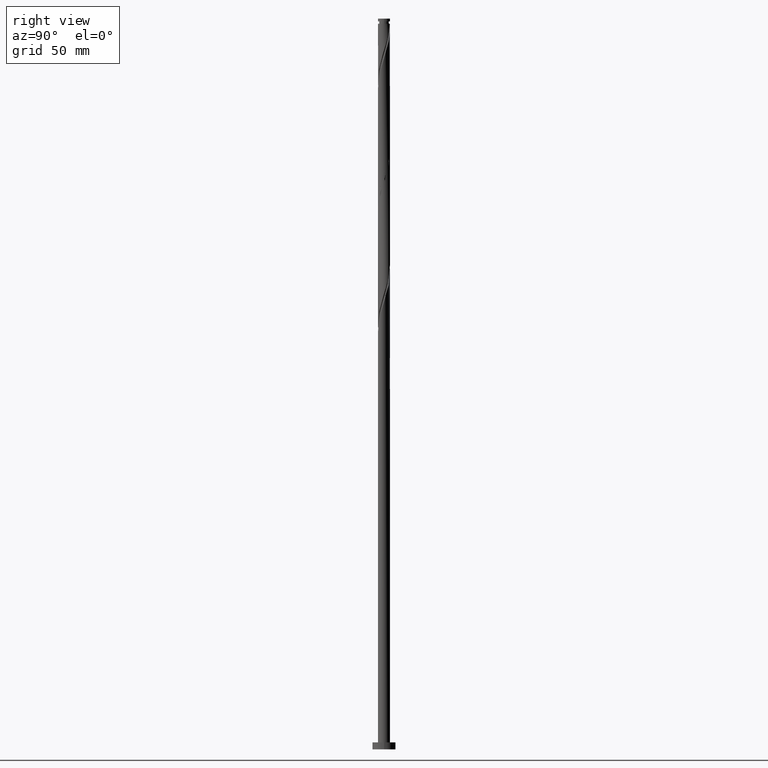
[diagram: clean part render]
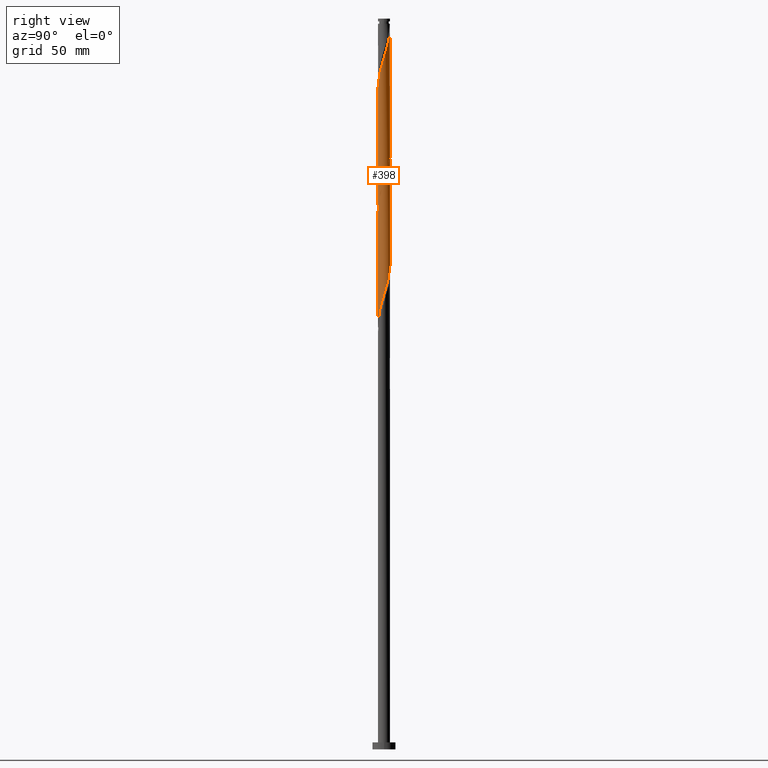
[diagram: same view with one face highlighted and labeled with its STEP entity id]
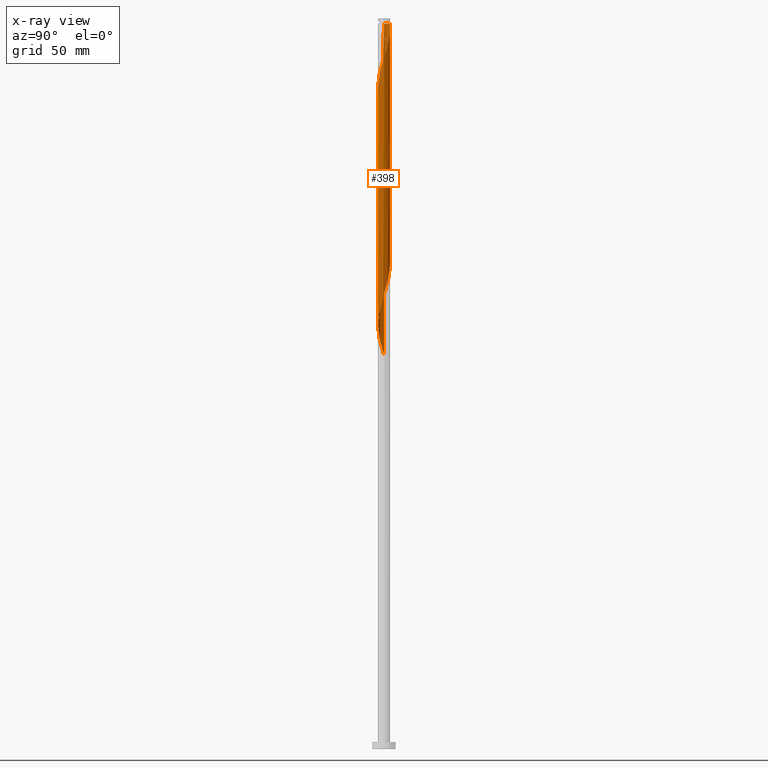
[diagram: x-ray of the same camera — body ghosted, the highlighted face saturated]
A machine part, right view. The second image highlights one B-rep face of the part: STEP entity #398.
The next image is the same camera in x-ray: the body ghosted, the highlighted face saturated — about 0% of this face is hidden behind the body in this view.
In plain terms, the highlighted cylindrical surface (bore or boss wall) has radius 2.6 mm, axis along (-0, -0, -1).
Its self-contained STEP definition (entity closure, byte-faithful):
#7 = CARTESIAN_POINT ( 'NONE',  ( 1.444941135775468233, -2.181275912834379938, 240.6225577271217446 ) ) ;
#24 = CARTESIAN_POINT ( 'NONE',  ( -2.448116422636778200, -0.9233338913868917031, 225.6225577271217730 ) ) ;
#31 = EDGE_CURVE ( 'NONE', #921, #1142, #1130, .T. ) ;
#33 = CARTESIAN_POINT ( 'NONE',  ( -0.3554268301776142835, 2.592198152564238356, 210.6225577271218015 ) ) ;
#41 = ORIENTED_EDGE ( 'NONE', *, *, #98, .F. ) ;
#45 = CARTESIAN_POINT ( 'NONE',  ( -0.8044841181609280190, -2.489703756954708691, 180.6225577271218867 ) ) ;
#51 = ORIENTED_EDGE ( 'NONE', *, *, #662, .F. ) ;
#55 = CARTESIAN_POINT ( 'NONE',  ( -2.600000000000003197, -1.570937663140591017E-15, 271.7605406492156703 ) ) ;
#76 = CARTESIAN_POINT ( 'NONE',  ( 2.599247197804762877, 0.06256200687382558467, 196.5600577271218015 ) ) ;
#88 = CARTESIAN_POINT ( 'NONE',  ( 2.547999999999998266, -0.5173934672954453307, 194.6850577271218015 ) ) ;
#92 = DIRECTION ( 'NONE',  ( -0.000000000000000000, -0.000000000000000000, -1.000000000000000000 ) ) ;
#97 = CARTESIAN_POINT ( 'NONE',  ( 0.3554268301776158379, 2.592198152564242353, 309.9975577271218299 ) ) ;
#98 = EDGE_CURVE ( 'NONE', #159, #1351, #572, .T. ) ;
#107 = CARTESIAN_POINT ( 'NONE',  ( 2.448116422636782197, -0.9233338913868942566, 294.9975577271217730 ) ) ;
#110 = CARTESIAN_POINT ( 'NONE',  ( 0.8044841181609282410, 2.489703756954708691, 259.3725577271218299 ) ) ;
#120 = CARTESIAN_POINT ( 'NONE',  ( 1.338325226974176330, 2.248267128392905434, 257.4975577271217730 ) ) ;
#124 = CARTESIAN_POINT ( 'NONE',  ( -2.600000000000000089, 0.000000000000000000, 315.0000000000000000 ) ) ;
#126 = CARTESIAN_POINT ( 'NONE',  ( -2.248267128392908987, -1.338325226974176996, 276.2475577271217730 ) ) ;
#136 = CARTESIAN_POINT ( 'NONE',  ( 2.520157287600512497, -0.6393803607822549084, 295.9350577271218299 ) ) ;
#142 = CARTESIAN_POINT ( 'NONE',  ( -2.489703756954709135, 0.8044841181609280190, 272.4975577271218299 ) ) ;
#151 = CARTESIAN_POINT ( 'NONE',  ( 0.3554268301776138395, -2.592198152564238356, 236.8725577271218583 ) ) ;
#157 = CARTESIAN_POINT ( 'NONE',  ( 0.06256200687382568182, -2.599247197804762877, 235.9350577271217446 ) ) ;
#159 = VERTEX_POINT ( 'NONE', #652 ) ;
#171 = CARTESIAN_POINT ( 'NONE',  ( -1.444941135775468455, 2.181275912834379938, 214.3725577271217446 ) ) ;
#182 = CARTESIAN_POINT ( 'NONE',  ( -2.314696167735579291, -1.184137513581179801, 226.5600577271217446 ) ) ;
#191 = CARTESIAN_POINT ( 'NONE',  ( 2.592198152564238356, 0.3554268301776137284, 197.4975577271218015 ) ) ;
#202 =( BOUNDED_CURVE ( )  B_SPLINE_CURVE ( 2, ( #1106, #1762, #1499, #142, #692, #832, #528, #841, #401, #800, #975, #1372, #1082, #1357, #415, #1633, #950, #110, #1520, #120, #1112, #958, #1506, #669, #1219, #280, #1771, #1234, #1243, #682, #1790 ),
 .UNSPECIFIED., .F., .T. ) 
 B_SPLINE_CURVE_WITH_KNOTS ( ( 3, 2, 2, 2, 2, 2, 2, 2, 2, 2, 2, 2, 2, 2, 2, 3 ),
 ( 0.4295303401299220281, 0.4375000000000000000, 0.4464285714285714524, 0.4553571428571428492, 0.4642857142857143016, 0.4732142857142856984, 0.4821428571428571508, 0.4910714285714285476, 0.5000000000000000000, 0.5089285714285713969, 0.5178571428571429047, 0.5267857142857143016, 0.5357142857142856984, 0.5446428571428570953, 0.5535714285714286031, 0.5545303401299219725 ),
 .UNSPECIFIED. ) 
 CURVE ( )  GEOMETRIC_REPRESENTATION_ITEM ( )  RATIONAL_B_SPLINE_CURVE ( ( 0.9079949616362186227, 0.9039886423360814494, 0.9090909090909484735, 0.9033747362666231240, 0.9090909090909484735, 0.9033747362666231240, 0.9090909090909484735, 0.9033747362666231240, 0.9090909090909484735, 0.9033747362666231240, 0.9090909090909484735, 0.9033747362666231240, 0.9090909090909484735, 0.9033747362666231240, 0.9090909090909484735, 0.9033747362666231240, 0.9090909090909484735, 0.9033747362666231240, 0.9090909090909484735, 0.9033747362666231240, 0.9090909090909484735, 0.9033747362666231240, 0.9090909090909484735, 0.9033747362666231240, 0.9090909090909484735, 0.9033747362666231240, 0.9090909090909484735, 0.9033747362666231240, 0.9090909090909484735, 0.9084770030214902592, 0.9079949616362186227 ) ) 
 REPRESENTATION_ITEM ( '' )  );
#210 = CARTESIAN_POINT ( 'NONE',  ( 1.444941135775468233, -2.181275912834379938, 188.1225577271217730 ) ) ;
#218 = CARTESIAN_POINT ( 'NONE',  ( -2.448116422636778200, -0.9233338913868917031, 173.1225577271218015 ) ) ;
#221 = CARTESIAN_POINT ( 'NONE',  ( 2.600000000000000089, 3.184081677783118191E-16, 315.0000000000000000 ) ) ;
#241 = CARTESIAN_POINT ( 'NONE',  ( 2.071180063230220636, 1.571691173760823901, 303.4350577271218299 ) ) ;
#250 = CARTESIAN_POINT ( 'NONE',  ( 2.181275912834382602, -1.444941135775472008, 293.1225577271217162 ) ) ;
#259 = CARTESIAN_POINT ( 'NONE',  ( -1.669517066921501813, -1.993166516690926704, 279.0600577271218299 ) ) ;
#280 = CARTESIAN_POINT ( 'NONE',  ( 2.448116422636778200, 0.9233338913868913700, 251.8725577271217446 ) ) ;
#290 = CARTESIAN_POINT ( 'NONE',  ( -2.489703756954709135, 0.8044841181609280190, 219.9975577271217730 ) ) ;
#298 = CARTESIAN_POINT ( 'NONE',  ( 0.9233338913868917031, -2.448116422636778200, 238.7475577271218015 ) ) ;
#305 = CARTESIAN_POINT ( 'NONE',  ( 2.520157287600507612, 0.6393803607822525770, 198.4350577271217446 ) ) ;
#311 = CARTESIAN_POINT ( 'NONE',  ( -1.338325226974176108, -2.248267128392905434, 231.2475577271218299 ) ) ;
#318 = CARTESIAN_POINT ( 'NONE',  ( 2.600000000000000089, 3.184081677783118191E-16, 312.8100577271218867 ) ) ;
#326 = DIRECTION ( 'NONE',  ( -1.000000000000000000, 0.000000000000000000, 0.000000000000000000 ) ) ;
#331 = CARTESIAN_POINT ( 'NONE',  ( -2.520157287600507612, -0.6393803607822531321, 172.1850577271217446 ) ) ;
#360 = CARTESIAN_POINT ( 'NONE',  ( 0.3554268301776138395, -2.592198152564238356, 184.3725577271218299 ) ) ;
#368 = CARTESIAN_POINT ( 'NONE',  ( -2.314696167735579291, -1.184137513581179801, 174.0600577271217730 ) ) ;
#382 = CARTESIAN_POINT ( 'NONE',  ( 0.000000000000000000, 0.000000000000000000, 315.0000000000000000 ) ) ;
#398 = ADVANCED_FACE ( 'NONE', ( #1069 ), #721, .T. ) ;
#401 = CARTESIAN_POINT ( 'NONE',  ( -1.669517066921498705, 1.993166516690923817, 267.8100577271217730 ) ) ;
#412 = CARTESIAN_POINT ( 'NONE',  ( 1.805057120547470806, -1.894092998067532729, 291.2475577271217162 ) ) ;
#415 = CARTESIAN_POINT ( 'NONE',  ( -0.06256200687382600101, 2.599247197804762877, 262.1850577271218299 ) ) ;
#424 = CARTESIAN_POINT ( 'NONE',  ( 0.5173934672954455527, 2.547999999999998266, 207.8100577271217730 ) ) ;
#434 = CARTESIAN_POINT ( 'NONE',  ( 2.314696167735579291, 1.184137513581179579, 200.3100577271217730 ) ) ;
#442 = CARTESIAN_POINT ( 'NONE',  ( -2.547999999999998266, 0.5173934672954451086, 220.9350577271217730 ) ) ;
#448 = EDGE_CURVE ( 'NONE', #159, #745, #1391, .T. ) ;
#459 = CARTESIAN_POINT ( 'NONE',  ( -0.9233338913868922582, 2.448116422636778200, 212.4975577271217730 ) ) ;
#463 = CARTESIAN_POINT ( 'NONE',  ( 0.000000000000000000, 0.000000000000000000, 312.8100577271217730 ) ) ;
#465 = CARTESIAN_POINT ( 'NONE',  ( -2.599999999999998312, -1.343319616937331720E-15, 275.1095748050278758 ) ) ;
#470 = CARTESIAN_POINT ( 'NONE',  ( -0.2303028164299624481, -2.606296243045286953, 182.4975577271217730 ) ) ;
#488 = CARTESIAN_POINT ( 'NONE',  ( 2.248267128392905434, -1.338325226974176108, 191.8725577271218015 ) ) ;
#505 = CARTESIAN_POINT ( 'NONE',  ( 0.6393803607822529100, -2.520157287600507612, 185.3100577271217446 ) ) ;
#516 = CARTESIAN_POINT ( 'NONE',  ( 1.071404672567552341, -2.368985442673811281, 288.4350577271217730 ) ) ;
#528 = CARTESIAN_POINT ( 'NONE',  ( -2.071180063230216639, 1.571691173760821680, 269.6850577271217730 ) ) ;
#541 = CARTESIAN_POINT ( 'NONE',  ( 0.9233338913868948117, 2.448116422636781753, 308.1225577271217730 ) ) ;
#547 = CARTESIAN_POINT ( 'NONE',  ( 0.5173934672954451086, -2.548000000000003151, 286.5600577271217730 ) ) ;
#569 = CARTESIAN_POINT ( 'NONE',  ( 2.489703756954708691, -0.8044841181609280190, 246.2475577271217446 ) ) ;
#572 = LINE ( 'NONE', #1125, #1568 ) ;
#585 = CARTESIAN_POINT ( 'NONE',  ( 1.669517066921498039, -1.993166516690924261, 241.5600577271218015 ) ) ;
#589 = DIRECTION ( 'NONE',  ( -1.000000000000000000, 0.000000000000000000, 0.000000000000000000 ) ) ;
#593 = CARTESIAN_POINT ( 'NONE',  ( -0.2303028164299624481, -2.606296243045286953, 234.9975577271217730 ) ) ;
#603 = CARTESIAN_POINT ( 'NONE',  ( -1.805057120547469030, -1.894092998067528733, 229.3725577271218015 ) ) ;
#633 = ORIENTED_EDGE ( 'NONE', *, *, #1033, .F. ) ;
#636 = CARTESIAN_POINT ( 'NONE',  ( 2.368985442673806840, -1.071404672567551897, 192.8100577271217446 ) ) ;
#640 = AXIS2_PLACEMENT_3D ( 'NONE', #463, #1016, #326 ) ;
#642 = VECTOR ( 'NONE', #1101, 1000.000000000000000 ) ;
#646 = ORIENTED_EDGE ( 'NONE', *, *, #448, .T. ) ;
#649 = CARTESIAN_POINT ( 'NONE',  ( -2.599247197804762877, -0.06256200687382577896, 170.3100577271217730 ) ) ;
#652 = CARTESIAN_POINT ( 'NONE',  ( -2.599999999999973888, 0.000000000000000000, 312.8100577271217730 ) ) ;
#658 = CARTESIAN_POINT ( 'NONE',  ( 1.571691173760823901, -2.071180063230220636, 290.3100577271218299 ) ) ;
#662 = EDGE_CURVE ( 'NONE', #1351, #1319, #202, .T. ) ;
#669 = CARTESIAN_POINT ( 'NONE',  ( 2.181275912834379938, 1.444941135775468233, 253.7475577271217730 ) ) ;
#679 = CARTESIAN_POINT ( 'NONE',  ( -2.368985442673811281, -1.071404672567552563, 275.3100577271218299 ) ) ;
#682 = CARTESIAN_POINT ( 'NONE',  ( 2.599999999999999201, 0.03128553263261591583, 248.9599374932529088 ) ) ;
#692 = CARTESIAN_POINT ( 'NONE',  ( -2.368985442673806840, 1.071404672567551675, 271.5600577271216594 ) ) ;
#701 = CARTESIAN_POINT ( 'NONE',  ( 1.571691173760822124, 2.071180063230215751, 204.0600577271218015 ) ) ;
#708 = CARTESIAN_POINT ( 'NONE',  ( -2.181275912834379493, -1.444941135775468233, 227.4975577271217730 ) ) ;
#717 = CARTESIAN_POINT ( 'NONE',  ( 2.599999999999999201, -2.903062949936790296E-15, 248.8595748050278473 ) ) ;
#721 = CYLINDRICAL_SURFACE ( 'NONE', #1046, 2.600000000000000089 ) ;
#732 = EDGE_CURVE ( 'NONE', #1319, #1142, #1254, .T. ) ;
#737 = CARTESIAN_POINT ( 'NONE',  ( -2.248267128392905434, 1.338325226974175886, 218.1225577271218015 ) ) ;
#745 = VERTEX_POINT ( 'NONE', #1437 ) ;
#750 = CARTESIAN_POINT ( 'NONE',  ( -1.805057120547469030, -1.894092998067528733, 176.8725577271218015 ) ) ;
#765 = CARTESIAN_POINT ( 'NONE',  ( 2.071180063230216195, -1.571691173760821902, 190.9350577271217446 ) ) ;
#798 = CARTESIAN_POINT ( 'NONE',  ( 0.6393803607822551305, 2.520157287600512497, 309.0600577271218867 ) ) ;
#800 = CARTESIAN_POINT ( 'NONE',  ( -1.444941135775468455, 2.181275912834379938, 266.8725577271218299 ) ) ;
#816 = ORIENTED_EDGE ( 'NONE', *, *, #1223, .F. ) ;
#818 = CARTESIAN_POINT ( 'NONE',  ( -0.6393803607822549084, -2.520157287600512497, 282.8100577271218299 ) ) ;
#824 = VECTOR ( 'NONE', #92, 1000.000000000000000 ) ;
#828 = CARTESIAN_POINT ( 'NONE',  ( -0.5173934672955504688, 2.548000000000802512, 312.8100577271218867 ) ) ;
#832 = CARTESIAN_POINT ( 'NONE',  ( -2.248267128392905434, 1.338325226974175886, 270.6225577271217730 ) ) ;
#841 = CARTESIAN_POINT ( 'NONE',  ( -1.894092998067528733, 1.805057120547468807, 268.7475577271217730 ) ) ;
#849 = CARTESIAN_POINT ( 'NONE',  ( 2.071180063230216195, -1.571691173760821902, 243.4350577271217446 ) ) ;
#857 = CARTESIAN_POINT ( 'NONE',  ( -2.071180063230216639, 1.571691173760821680, 217.1850577271217162 ) ) ;
#865 = CARTESIAN_POINT ( 'NONE',  ( 0.6393803607822529100, -2.520157287600507612, 237.8100577271217446 ) ) ;
#872 = CARTESIAN_POINT ( 'NONE',  ( -1.669517066921498705, 1.993166516690923817, 215.3100577271217446 ) ) ;
#891 = CARTESIAN_POINT ( 'NONE',  ( -2.599999999999998757, -0.03128553263260888673, 170.2099374932529088 ) ) ;
#907 = CARTESIAN_POINT ( 'NONE',  ( 2.606296243045286953, -0.2303028164299626424, 195.6225577271218015 ) ) ;
#921 = VERTEX_POINT ( 'NONE', #55 ) ;
#924 = CARTESIAN_POINT ( 'NONE',  ( -1.571691173760821902, -2.071180063230216195, 177.8100577271217446 ) ) ;
#936 = CARTESIAN_POINT ( 'NONE',  ( 2.489703756954713132, 0.8044841181609280190, 300.6225577271218299 ) ) ;
#948 = CARTESIAN_POINT ( 'NONE',  ( -2.071180063230220636, -1.571691173760823901, 277.1850577271217162 ) ) ;
#950 = CARTESIAN_POINT ( 'NONE',  ( 0.5173934672954455527, 2.547999999999998266, 260.3100577271217162 ) ) ;
#955 = CARTESIAN_POINT ( 'NONE',  ( -2.548000000000003151, -0.5173934672954453307, 273.4350577271217730 ) ) ;
#958 = CARTESIAN_POINT ( 'NONE',  ( 1.805057120547469030, 1.894092998067528288, 255.6225577271218299 ) ) ;
#964 = CARTESIAN_POINT ( 'NONE',  ( -0.2303028164299651959, 2.606296243045293171, 311.8725577271218867 ) ) ;
#973 = CARTESIAN_POINT ( 'NONE',  ( 1.894092998067532729, 1.805057120547470362, 304.3725577271217730 ) ) ;
#975 = CARTESIAN_POINT ( 'NONE',  ( -1.184137513581179801, 2.314696167735579291, 265.9350577271217730 ) ) ;
#981 = CARTESIAN_POINT ( 'NONE',  ( -1.571691173760821902, -2.071180063230216195, 230.3100577271218015 ) ) ;
#990 = CARTESIAN_POINT ( 'NONE',  ( -0.5173934672954453307, -2.547999999999998266, 234.0600577271217446 ) ) ;
#999 = CARTESIAN_POINT ( 'NONE',  ( 1.071404672567552119, 2.368985442673805952, 205.9350577271217730 ) ) ;
#1005 = CARTESIAN_POINT ( 'NONE',  ( -1.894092998067528733, 1.805057120547468807, 216.2475577271217730 ) ) ;
#1013 = CARTESIAN_POINT ( 'NONE',  ( -0.6393803607822531321, 2.520157287600507612, 211.5600577271217446 ) ) ;
#1016 = DIRECTION ( 'NONE',  ( -0.000000000000000000, -0.000000000000000000, -1.000000000000000000 ) ) ;
#1022 = CARTESIAN_POINT ( 'NONE',  ( -0.5173934672954453307, -2.547999999999998266, 181.5600577271217730 ) ) ;
#1033 = EDGE_CURVE ( 'NONE', #921, #745, #1189, .T. ) ;
#1046 = AXIS2_PLACEMENT_3D ( 'NONE', #382, #1419, #589 ) ;
#1053 = CARTESIAN_POINT ( 'NONE',  ( -2.599999999999999201, 2.664250573592375680E-15, 170.1095748050278189 ) ) ;
#1055 = CARTESIAN_POINT ( 'NONE',  ( 0.06256200687382568182, -2.599247197804762877, 183.4350577271217446 ) ) ;
#1063 = ORIENTED_EDGE ( 'NONE', *, *, #1223, .T. ) ;
#1066 = CARTESIAN_POINT ( 'NONE',  ( 2.599247197804768206, -0.06256200687382695858, 297.8100577271216594 ) ) ;
#1069 = FACE_OUTER_BOUND ( 'NONE', #1471, .T. ) ;
#1078 = CARTESIAN_POINT ( 'NONE',  ( 2.248267128392908987, 1.338325226974176774, 302.4975577271217730 ) ) ;
#1082 = CARTESIAN_POINT ( 'NONE',  ( -0.6393803607822531321, 2.520157287600507612, 264.0600577271217730 ) ) ;
#1092 = CARTESIAN_POINT ( 'NONE',  ( 2.599999999999999201, -2.903062949936789901E-15, 248.8595748050278473 ) ) ;
#1095 = CARTESIAN_POINT ( 'NONE',  ( 1.993166516690926260, -1.669517066921501813, 292.1850577271217730 ) ) ;
#1101 = DIRECTION ( 'NONE',  ( -0.000000000000000000, -0.000000000000000000, -1.000000000000000000 ) ) ;
#1103 = CARTESIAN_POINT ( 'NONE',  ( -0.3554268301776153383, -2.592198152564242353, 283.7475577271218299 ) ) ;
#1106 = CARTESIAN_POINT ( 'NONE',  ( -2.599999999999998312, -1.343319616937331720E-15, 275.1095748050278758 ) ) ;
#1112 = CARTESIAN_POINT ( 'NONE',  ( 1.571691173760822124, 2.071180063230215751, 256.5600577271217730 ) ) ;
#1120 = CARTESIAN_POINT ( 'NONE',  ( 1.993166516690924261, 1.669517066921498039, 202.1850577271217730 ) ) ;
#1125 = CARTESIAN_POINT ( 'NONE',  ( -2.600000000000000089, 0.000000000000000000, 315.0000000000000000 ) ) ;
#1130 = LINE ( 'NONE', #124, #642 ) ;
#1136 = CARTESIAN_POINT ( 'NONE',  ( -1.071404672567551897, -2.368985442673806840, 232.1850577271217730 ) ) ;
#1142 = VERTEX_POINT ( 'NONE', #1053 ) ;
#1147 = CARTESIAN_POINT ( 'NONE',  ( -2.606296243045286953, 0.2303028164299622538, 221.8725577271217730 ) ) ;
#1153 = ORIENTED_EDGE ( 'NONE', *, *, #31, .T. ) ;
#1156 = CARTESIAN_POINT ( 'NONE',  ( 0.2303028164299621428, 2.606296243045286953, 208.7475577271218015 ) ) ;
#1165 = CARTESIAN_POINT ( 'NONE',  ( -1.071404672567551897, -2.368985442673806840, 179.6850577271217730 ) ) ;
#1189 =( BOUNDED_CURVE ( )  B_SPLINE_CURVE ( 2, ( #1487, #1369, #955, #1377, #679, #126, #948, #1768, #259, #1496, #1199, #1504, #818, #1103, #1787, #1644, #547, #1751, #516, #1346, #658, #412, #1095, #250, #1209, #107, #136, #1510, #1066, #1361, #1620, #936, #1650, #1078, #241, #973, #1518, #1227, #1777, #541, #798, #97, #1630, #964, #828 ),
 .UNSPECIFIED., .F., .T. ) 
 B_SPLINE_CURVE_WITH_KNOTS ( ( 3, 2, 2, 2, 2, 2, 2, 2, 2, 2, 2, 2, 2, 2, 2, 2, 2, 2, 2, 2, 2, 2, 3 ),
 ( 0.5545303401299218615, 0.5625000000000000000, 0.5714285714285713969, 0.5803571428571427937, 0.5892857142857143016, 0.5982142857142856984, 0.6071428571428572063, 0.6160714285714286031, 0.6250000000000000000, 0.6339285714285713969, 0.6428571428571427937, 0.6517857142857144126, 0.6607142857142858094, 0.6696428571428573173, 0.6785714285714287142, 0.6875000000000001110, 0.6964285714285715079, 0.7053571428571429047, 0.7142857142857144126, 0.7232142857142858094, 0.7321428571428573173, 0.7410714285714287142, 0.7500000000000001110 ),
 .UNSPECIFIED. ) 
 CURVE ( )  GEOMETRIC_REPRESENTATION_ITEM ( )  RATIONAL_B_SPLINE_CURVE ( ( 0.9079949616362250620, 0.9039886423360875556, 0.9090909090909548018, 0.9033747362666294523, 0.9090909090909548018, 0.9033747362666294523, 0.9090909090909548018, 0.9033747362666294523, 0.9090909090909548018, 0.9033747362666294523, 0.9090909090909548018, 0.9033747362666294523, 0.9090909090909548018, 0.9033747362666294523, 0.9090909090909548018, 0.9033747362666294523, 0.9090909090909548018, 0.9033747362666294523, 0.9090909090909548018, 0.9033747362666294523, 0.9090909090909548018, 0.9033747362666294523, 0.9090909090909548018, 0.9033747362666294523, 0.9090909090909548018, 0.9033747362666294523, 0.9090909090909548018, 0.9033747362666294523, 0.9090909090909548018, 0.9033747362666294523, 0.9090909090909548018, 0.9033747362666294523, 0.9090909090909548018, 0.9033747362666294523, 0.9090909090909548018, 0.9033747362666294523, 0.9090909090909548018, 0.9033747362666294523, 0.9090909090909548018, 0.9033747362666294523, 0.9090909090909548018, 0.9033747362666294523, 0.9090909090909548018, 0.9033747362666293412, 0.9090909090909549128 ) ) 
 REPRESENTATION_ITEM ( '' )  );
#1191 = CARTESIAN_POINT ( 'NONE',  ( 2.489703756954708691, -0.8044841181609280190, 193.7475577271217730 ) ) ;
#1199 = CARTESIAN_POINT ( 'NONE',  ( -1.184137513581183354, -2.314696167735581511, 280.9350577271217162 ) ) ;
#1209 = CARTESIAN_POINT ( 'NONE',  ( 2.314696167735581511, -1.184137513581183354, 294.0600577271218299 ) ) ;
#1219 = CARTESIAN_POINT ( 'NONE',  ( 2.314696167735579291, 1.184137513581179579, 252.8100577271217730 ) ) ;
#1223 = EDGE_CURVE ( 'NONE', #1608, #1319, #1490, .T. ) ;
#1227 = CARTESIAN_POINT ( 'NONE',  ( 1.444941135775472008, 2.181275912834382602, 306.2475577271217730 ) ) ;
#1234 = CARTESIAN_POINT ( 'NONE',  ( 2.592198152564238356, 0.3554268301776137284, 249.9975577271218299 ) ) ;
#1243 = CARTESIAN_POINT ( 'NONE',  ( 2.599247197804762877, 0.06256200687382558467, 249.0600577271217446 ) ) ;
#1252 = CARTESIAN_POINT ( 'NONE',  ( -1.993166516690923817, -1.669517066921498039, 228.4350577271217730 ) ) ;
#1254 =( BOUNDED_CURVE ( )  B_SPLINE_CURVE ( 2, ( #717, #1424, #1405, #569, #1397, #1671, #849, #1270, #585, #7, #1280, #298, #865, #151, #157, #593, #990, #1551, #1136, #311, #981, #603, #1252, #708, #182, #24, #1289, #1678, #1415, #1147, #442, #290, #1684, #737, #857, #1005, #872, #171, #1692, #459, #1013, #33, #1561, #1156, #424, #1527, #999, #1390, #701, #1807, #1120, #1546, #434, #1537, #305, #191, #76, #907, #88, #1191, #636, #488, #765, #1444, #1702, #210, #1455, #1611, #505, #360, #1055, #470, #1022, #45, #1165, #1741, #924, #750, #1723, #1573, #368, #218, #331, #1314, #649, #891, #1475 ),
 .UNSPECIFIED., .F., .T. ) 
 B_SPLINE_CURVE_WITH_KNOTS ( ( 3, 2, 2, 2, 2, 2, 2, 2, 2, 2, 2, 2, 2, 2, 2, 2, 2, 2, 2, 2, 2, 2, 2, 2, 2, 2, 2, 2, 2, 2, 2, 2, 2, 2, 2, 2, 2, 2, 2, 2, 2, 2, 2, 3 ),
 ( 0.5545303401299219725, 0.5625000000000000000, 0.5714285714285713969, 0.5803571428571429047, 0.5892857142857143016, 0.5982142857142856984, 0.6071428571428570953, 0.6160714285714286031, 0.6250000000000000000, 0.6339285714285713969, 0.6428571428571429047, 0.6517857142857143016, 0.6607142857142856984, 0.6696428571428570953, 0.6785714285714286031, 0.6875000000000000000, 0.6964285714285713969, 0.7053571428571429047, 0.7142857142857143016, 0.7232142857142856984, 0.7321428571428570953, 0.7410714285714286031, 0.7500000000000000000, 0.7589285714285713969, 0.7678571428571429047, 0.7767857142857143016, 0.7857142857142856984, 0.7946428571428570953, 0.8035714285714286031, 0.8125000000000000000, 0.8214285714285713969, 0.8303571428571429047, 0.8392857142857143016, 0.8482142857142856984, 0.8571428571428570953, 0.8660714285714286031, 0.8750000000000000000, 0.8839285714285713969, 0.8928571428571429047, 0.9017857142857143016, 0.9107142857142856984, 0.9196428571428569843, 0.9285714285714286031, 0.9295303401299221946 ),
 .UNSPECIFIED. ) 
 CURVE ( )  GEOMETRIC_REPRESENTATION_ITEM ( )  RATIONAL_B_SPLINE_CURVE ( ( 0.9079949616362186227, 0.9039886423360813383, 0.9090909090909484735, 0.9033747362666231240, 0.9090909090909484735, 0.9033747362666231240, 0.9090909090909484735, 0.9033747362666231240, 0.9090909090909484735, 0.9033747362666231240, 0.9090909090909484735, 0.9033747362666231240, 0.9090909090909484735, 0.9033747362666231240, 0.9090909090909484735, 0.9033747362666231240, 0.9090909090909484735, 0.9033747362666231240, 0.9090909090909484735, 0.9033747362666231240, 0.9090909090909484735, 0.9033747362666231240, 0.9090909090909484735, 0.9033747362666231240, 0.9090909090909484735, 0.9033747362666231240, 0.9090909090909484735, 0.9033747362666231240, 0.9090909090909484735, 0.9033747362666231240, 0.9090909090909484735, 0.9033747362666231240, 0.9090909090909484735, 0.9033747362666231240, 0.9090909090909484735, 0.9033747362666231240, 0.9090909090909484735, 0.9033747362666231240, 0.9090909090909484735, 0.9033747362666231240, 0.9090909090909484735, 0.9033747362666231240, 0.9090909090909484735, 0.9033747362666231240, 0.9090909090909484735, 0.9033747362666231240, 0.9090909090909484735, 0.9033747362666231240, 0.9090909090909484735, 0.9033747362666231240, 0.9090909090909484735, 0.9033747362666231240, 0.9090909090909484735, 0.9033747362666231240, 0.9090909090909484735, 0.9033747362666231240, 0.9090909090909484735, 0.9033747362666231240, 0.9090909090909484735, 0.9033747362666231240, 0.9090909090909484735, 0.9033747362666231240, 0.9090909090909484735, 0.9033747362666231240, 0.9090909090909484735, 0.9033747362666231240, 0.9090909090909484735, 0.9033747362666231240, 0.9090909090909484735, 0.9033747362666231240, 0.9090909090909484735, 0.9033747362666231240, 0.9090909090909484735, 0.9033747362666231240, 0.9090909090909484735, 0.9033747362666231240, 0.9090909090909484735, 0.9033747362666231240, 0.9090909090909484735, 0.9033747362666231240, 0.9090909090909484735, 0.9033747362666231240, 0.9090909090909484735, 0.9033747362666231240, 0.9090909090909484735, 0.9084770030214901482, 0.9079949616362184006 ) ) 
 REPRESENTATION_ITEM ( '' )  );
#1270 = CARTESIAN_POINT ( 'NONE',  ( 1.894092998067528733, -1.805057120547469030, 242.4975577271217730 ) ) ;
#1280 = CARTESIAN_POINT ( 'NONE',  ( 1.184137513581179579, -2.314696167735579291, 239.6850577271217446 ) ) ;
#1289 = CARTESIAN_POINT ( 'NONE',  ( -2.520157287600507612, -0.6393803607822531321, 224.6850577271217730 ) ) ;
#1314 = CARTESIAN_POINT ( 'NONE',  ( -2.592198152564238356, -0.3554268301776140615, 171.2475577271217730 ) ) ;
#1319 = VERTEX_POINT ( 'NONE', #1092 ) ;
#1346 = CARTESIAN_POINT ( 'NONE',  ( 1.338325226974176774, -2.248267128392908987, 289.3725577271218867 ) ) ;
#1351 = VERTEX_POINT ( 'NONE', #465 ) ;
#1357 = CARTESIAN_POINT ( 'NONE',  ( -0.3554268301776142835, 2.592198152564238356, 263.1225577271217730 ) ) ;
#1361 = CARTESIAN_POINT ( 'NONE',  ( 2.606296243045292282, 0.2303028164299616709, 298.7475577271219436 ) ) ;
#1369 = CARTESIAN_POINT ( 'NONE',  ( -2.600000000000004974, -0.2613098319673904935, 272.5988117281794416 ) ) ;
#1372 = CARTESIAN_POINT ( 'NONE',  ( -0.9233338913868922582, 2.448116422636778200, 264.9975577271218299 ) ) ;
#1377 = CARTESIAN_POINT ( 'NONE',  ( -2.489703756954713132, -0.8044841181609284630, 274.3725577271217730 ) ) ;
#1390 = CARTESIAN_POINT ( 'NONE',  ( 1.338325226974176330, 2.248267128392905434, 204.9975577271218015 ) ) ;
#1391 = CIRCLE ( 'NONE', #640, 2.599999999999973888 ) ;
#1397 = CARTESIAN_POINT ( 'NONE',  ( 2.368985442673806840, -1.071404672567551897, 245.3100577271217446 ) ) ;
#1405 = CARTESIAN_POINT ( 'NONE',  ( 2.547999999999998266, -0.5173934672954453307, 247.1850577271218015 ) ) ;
#1415 = CARTESIAN_POINT ( 'NONE',  ( -2.599247197804762877, -0.06256200687382577896, 222.8100577271217730 ) ) ;
#1419 = DIRECTION ( 'NONE',  ( -0.000000000000000000, -0.000000000000000000, -1.000000000000000000 ) ) ;
#1424 = CARTESIAN_POINT ( 'NONE',  ( 2.599999999999999201, -0.2613098319673946013, 248.0213037260642750 ) ) ;
#1437 = CARTESIAN_POINT ( 'NONE',  ( -0.5173934672955504688, 2.548000000000802512, 312.8100577271218867 ) ) ;
#1444 = CARTESIAN_POINT ( 'NONE',  ( 1.894092998067528733, -1.805057120547469030, 189.9975577271218015 ) ) ;
#1455 = CARTESIAN_POINT ( 'NONE',  ( 1.184137513581179579, -2.314696167735579291, 187.1850577271218299 ) ) ;
#1471 = EDGE_LOOP ( 'NONE', ( #41, #646, #633, #1153, #1597, #816, #1063, #51 ) ) ;
#1475 = CARTESIAN_POINT ( 'NONE',  ( -2.599999999999999201, 2.664250573592375680E-15, 170.1095748050278189 ) ) ;
#1487 = CARTESIAN_POINT ( 'NONE',  ( -2.600000000000003197, -1.570937663140591017E-15, 271.7605406492156703 ) ) ;
#1490 = LINE ( 'NONE', #221, #824 ) ;
#1496 = CARTESIAN_POINT ( 'NONE',  ( -1.444941135775472008, -2.181275912834382602, 279.9975577271217162 ) ) ;
#1499 = CARTESIAN_POINT ( 'NONE',  ( -2.547999999999998266, 0.5173934672954451086, 273.4350577271217730 ) ) ;
#1504 = CARTESIAN_POINT ( 'NONE',  ( -0.9233338913868942566, -2.448116422636782197, 281.8725577271216594 ) ) ;
#1506 = CARTESIAN_POINT ( 'NONE',  ( 1.993166516690924261, 1.669517066921498039, 254.6850577271217446 ) ) ;
#1510 = CARTESIAN_POINT ( 'NONE',  ( 2.592198152564242353, -0.3554268301776155048, 296.8725577271218299 ) ) ;
#1518 = CARTESIAN_POINT ( 'NONE',  ( 1.669517066921501813, 1.993166516690926260, 305.3100577271218867 ) ) ;
#1520 = CARTESIAN_POINT ( 'NONE',  ( 1.071404672567552119, 2.368985442673805952, 258.4350577271217162 ) ) ;
#1527 = CARTESIAN_POINT ( 'NONE',  ( 0.8044841181609282410, 2.489703756954708691, 206.8725577271218299 ) ) ;
#1537 = CARTESIAN_POINT ( 'NONE',  ( 2.448116422636778200, 0.9233338913868913700, 199.3725577271218015 ) ) ;
#1546 = CARTESIAN_POINT ( 'NONE',  ( 2.181275912834379938, 1.444941135775468233, 201.2475577271218015 ) ) ;
#1551 = CARTESIAN_POINT ( 'NONE',  ( -0.8044841181609280190, -2.489703756954708691, 233.1225577271218015 ) ) ;
#1561 = CARTESIAN_POINT ( 'NONE',  ( -0.06256200687382600101, 2.599247197804762877, 209.6850577271218015 ) ) ;
#1568 = VECTOR ( 'NONE', #1613, 1000.000000000000000 ) ;
#1573 = CARTESIAN_POINT ( 'NONE',  ( -2.181275912834379493, -1.444941135775468233, 174.9975577271218015 ) ) ;
#1597 = ORIENTED_EDGE ( 'NONE', *, *, #732, .F. ) ;
#1608 = VERTEX_POINT ( 'NONE', #318 ) ;
#1611 = CARTESIAN_POINT ( 'NONE',  ( 0.9233338913868917031, -2.448116422636778200, 186.2475577271218015 ) ) ;
#1613 = DIRECTION ( 'NONE',  ( -0.000000000000000000, -0.000000000000000000, -1.000000000000000000 ) ) ;
#1620 = CARTESIAN_POINT ( 'NONE',  ( 2.548000000000003151, 0.5173934672954449976, 299.6850577271217730 ) ) ;
#1630 = CARTESIAN_POINT ( 'NONE',  ( 0.06256200687382726389, 2.599247197804768206, 310.9350577271217730 ) ) ;
#1633 = CARTESIAN_POINT ( 'NONE',  ( 0.2303028164299621428, 2.606296243045286953, 261.2475577271218299 ) ) ;
#1644 = CARTESIAN_POINT ( 'NONE',  ( 0.2303028164299617542, -2.606296243045292282, 285.6225577271218299 ) ) ;
#1650 = CARTESIAN_POINT ( 'NONE',  ( 2.368985442673811281, 1.071404672567552119, 301.5600577271217730 ) ) ;
#1671 = CARTESIAN_POINT ( 'NONE',  ( 2.248267128392905434, -1.338325226974176108, 244.3725577271218015 ) ) ;
#1678 = CARTESIAN_POINT ( 'NONE',  ( -2.592198152564238356, -0.3554268301776140615, 223.7475577271218015 ) ) ;
#1684 = CARTESIAN_POINT ( 'NONE',  ( -2.368985442673806840, 1.071404672567551675, 219.0600577271217730 ) ) ;
#1692 = CARTESIAN_POINT ( 'NONE',  ( -1.184137513581179801, 2.314696167735579291, 213.4350577271218015 ) ) ;
#1702 = CARTESIAN_POINT ( 'NONE',  ( 1.669517066921498039, -1.993166516690924261, 189.0600577271217446 ) ) ;
#1723 = CARTESIAN_POINT ( 'NONE',  ( -1.993166516690923817, -1.669517066921498039, 175.9350577271217730 ) ) ;
#1741 = CARTESIAN_POINT ( 'NONE',  ( -1.338325226974176108, -2.248267128392905434, 178.7475577271217730 ) ) ;
#1751 = CARTESIAN_POINT ( 'NONE',  ( 0.8044841181609282410, -2.489703756954713132, 287.4975577271217730 ) ) ;
#1762 = CARTESIAN_POINT ( 'NONE',  ( -2.599999999999998312, 0.2613098319673976544, 274.2713037260642182 ) ) ;
#1768 = CARTESIAN_POINT ( 'NONE',  ( -1.894092998067532729, -1.805057120547470806, 278.1225577271217730 ) ) ;
#1771 = CARTESIAN_POINT ( 'NONE',  ( 2.520157287600507612, 0.6393803607822525770, 250.9350577271217730 ) ) ;
#1777 = CARTESIAN_POINT ( 'NONE',  ( 1.184137513581183354, 2.314696167735581511, 307.1850577271217730 ) ) ;
#1787 = CARTESIAN_POINT ( 'NONE',  ( -0.06256200687382673653, -2.599247197804768206, 284.6850577271218299 ) ) ;
#1790 = CARTESIAN_POINT ( 'NONE',  ( 2.599999999999999201, -2.903062949936790296E-15, 248.8595748050278473 ) ) ;
#1807 = CARTESIAN_POINT ( 'NONE',  ( 1.805057120547469030, 1.894092998067528288, 203.1225577271218015 ) ) ;